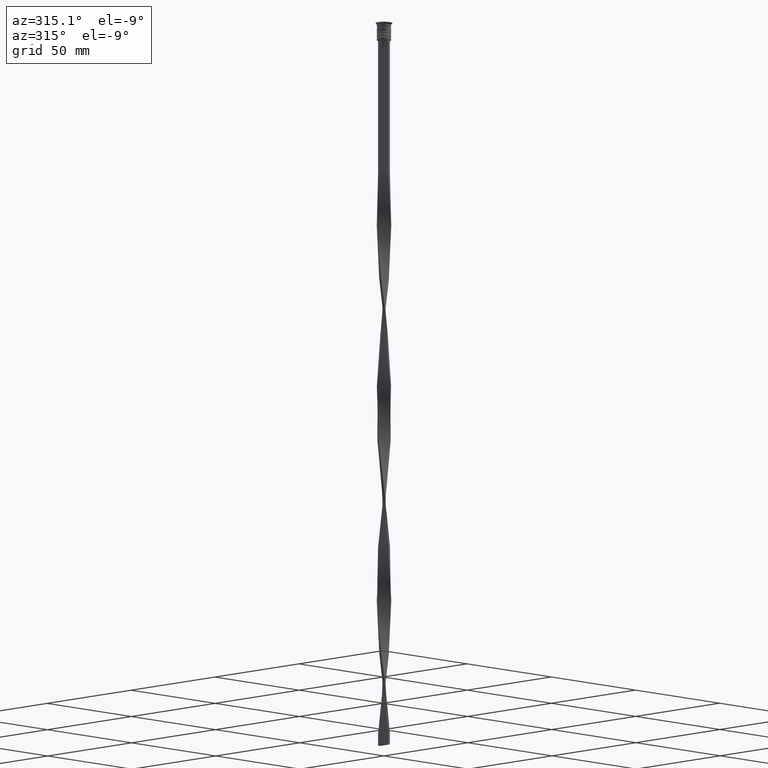
[diagram: clean part render]
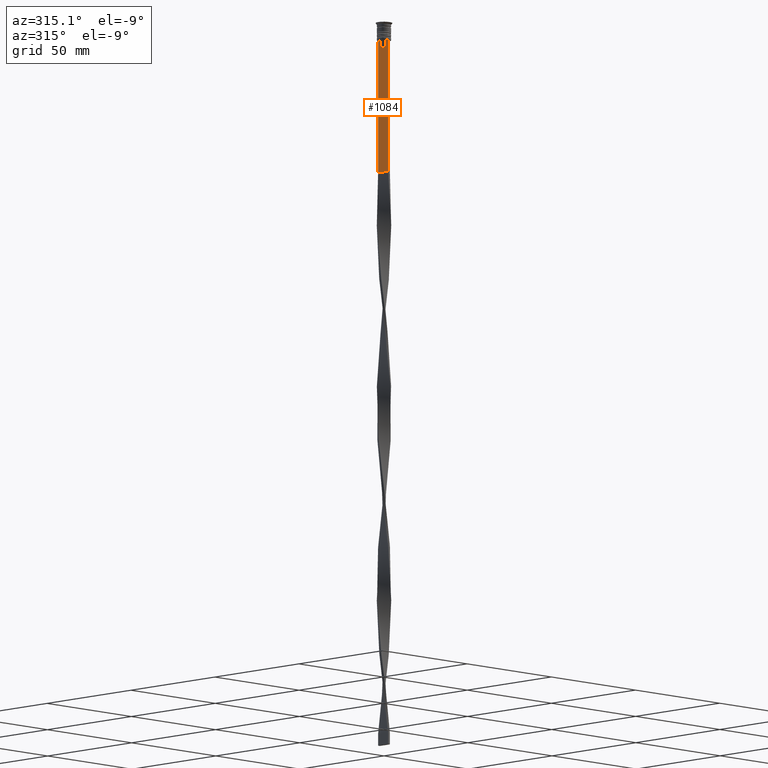
[diagram: same view with one face highlighted and labeled with its STEP entity id]
A machine part, auxiliary view. The second image highlights one B-rep face of the part: STEP entity #1084.
In plain terms, the highlighted planar face has unit normal (-1, 0, 0).
Its self-contained STEP definition (entity closure, byte-faithful):
#78 = ORIENTED_EDGE ( 'NONE', *, *, #3567, .F. ) ;
#145 = B_SPLINE_CURVE_WITH_KNOTS ( 'NONE', 3,
 ( #2719, #3930, #2432, #1201 ),
 .UNSPECIFIED., .F., .F.,
 ( 4, 4 ),
 ( 0.003278537493109840491, 0.004003794023484932504 ),
 .UNSPECIFIED. ) ;
#149 = VECTOR ( 'NONE', #580, 1000.000000000000000 ) ;
#166 = CARTESIAN_POINT ( 'NONE',  ( -0.5000000000000001110, -1.307669683062199217, -8.000000000000000000 ) ) ;
#170 = LINE ( 'NONE', #2299, #3718 ) ;
#203 = DIRECTION ( 'NONE',  ( 0.000000000000000000, -1.000000000000000000, 0.000000000000000000 ) ) ;
#237 = VERTEX_POINT ( 'NONE', #2107 ) ;
#265 = CARTESIAN_POINT ( 'NONE',  ( -0.5000000000000001110, 2.856571371417139904, -7.500000000000000000 ) ) ;
#289 = CARTESIAN_POINT ( 'NONE',  ( -0.5000000000000001110, -3.000000000000000000, -1.417237469701779329 ) ) ;
#336 = VECTOR ( 'NONE', #1388, 1000.000000000000000 ) ;
#410 = VECTOR ( 'NONE', #2152, 1000.000000000000000 ) ;
#445 = CARTESIAN_POINT ( 'NONE',  ( -0.5000000000000001110, -3.000000000000000000, -63.50000000000000000 ) ) ;
#467 = ORIENTED_EDGE ( 'NONE', *, *, #1078, .F. ) ;
#485 = CARTESIAN_POINT ( 'NONE',  ( -0.5000000000000001110, -3.000000000000000000, -7.500000000000000000 ) ) ;
#505 = DIRECTION ( 'NONE',  ( -1.000000000000000000, 0.000000000000000000, 0.000000000000000000 ) ) ;
#521 = ORIENTED_EDGE ( 'NONE', *, *, #3592, .F. ) ;
#524 = DIRECTION ( 'NONE',  ( 0.000000000000000000, -1.000000000000000000, 0.000000000000000000 ) ) ;
#580 = DIRECTION ( 'NONE',  ( 0.000000000000000000, 0.000000000000000000, -1.000000000000000000 ) ) ;
#597 = VECTOR ( 'NONE', #524, 1000.000000000000000 ) ;
#603 = VECTOR ( 'NONE', #2966, 1000.000000000000000 ) ;
#692 = CARTESIAN_POINT ( 'NONE',  ( -0.5000000000000001110, 3.000000000000000000, -1.417237469701779329 ) ) ;
#707 = LINE ( 'NONE', #485, #336 ) ;
#731 = LINE ( 'NONE', #3164, #3651 ) ;
#826 = DIRECTION ( 'NONE',  ( 0.000000000000000000, 1.000000000000000000, 0.000000000000000000 ) ) ;
#866 = EDGE_CURVE ( 'NONE', #3192, #1202, #707, .T. ) ;
#898 = LINE ( 'NONE', #3331, #410 ) ;
#913 = ORIENTED_EDGE ( 'NONE', *, *, #1589, .F. ) ;
#971 = ORIENTED_EDGE ( 'NONE', *, *, #3367, .F. ) ;
#993 = ORIENTED_EDGE ( 'NONE', *, *, #2205, .F. ) ;
#1025 = VERTEX_POINT ( 'NONE', #265 ) ;
#1078 = EDGE_CURVE ( 'NONE', #1025, #1140, #3555, .T. ) ;
#1084 = ADVANCED_FACE ( 'NONE', ( #1801 ), #3015, .T. ) ;
#1103 = VECTOR ( 'NONE', #3103, 1000.000000000000000 ) ;
#1140 = VERTEX_POINT ( 'NONE', #1506 ) ;
#1165 = DIRECTION ( 'NONE',  ( 0.000000000000000000, 0.000000000000000000, 1.000000000000000000 ) ) ;
#1201 = CARTESIAN_POINT ( 'NONE',  ( -0.5000000000000001110, 1.307669683062199217, -8.000000000000000000 ) ) ;
#1202 = VERTEX_POINT ( 'NONE', #3055 ) ;
#1379 = EDGE_CURVE ( 'NONE', #3851, #3633, #2220, .T. ) ;
#1388 = DIRECTION ( 'NONE',  ( 0.000000000000000000, -1.000000000000000000, 0.000000000000000000 ) ) ;
#1390 = DIRECTION ( 'NONE',  ( -0.000000000000000000, -0.000000000000000000, 1.000000000000000000 ) ) ;
#1443 = CARTESIAN_POINT ( 'NONE',  ( -0.5000000000000001110, -1.484307477388859153, -7.835011508197190722 ) ) ;
#1504 = VERTEX_POINT ( 'NONE', #445 ) ;
#1506 = CARTESIAN_POINT ( 'NONE',  ( -0.5000000000000001110, 1.833030277982335532, -7.500000000000000000 ) ) ;
#1543 = VERTEX_POINT ( 'NONE', #2263 ) ;
#1589 = EDGE_CURVE ( 'NONE', #2339, #3192, #731, .T. ) ;
#1637 = EDGE_CURVE ( 'NONE', #3154, #3051, #170, .T. ) ;
#1676 = CARTESIAN_POINT ( 'NONE',  ( -0.5000000000000001110, -1.833030277982335532, -7.500000000000000000 ) ) ;
#1698 = ORIENTED_EDGE ( 'NONE', *, *, #2672, .F. ) ;
#1702 = DIRECTION ( 'NONE',  ( 0.000000000000000000, -1.000000000000000000, 0.000000000000000000 ) ) ;
#1737 = EDGE_CURVE ( 'NONE', #1504, #3633, #2356, .T. ) ;
#1748 = CARTESIAN_POINT ( 'NONE',  ( -0.5000000000000001110, 1.399999999999997691, -10.49999999999999822 ) ) ;
#1801 = FACE_OUTER_BOUND ( 'NONE', #2724, .T. ) ;
#1947 = ORIENTED_EDGE ( 'NONE', *, *, #1379, .T. ) ;
#1997 = ORIENTED_EDGE ( 'NONE', *, *, #1737, .F. ) ;
#2017 = CARTESIAN_POINT ( 'NONE',  ( -0.5000000000000001110, -3.000000000000000000, -7.500000000000000000 ) ) ;
#2107 = CARTESIAN_POINT ( 'NONE',  ( -0.5000000000000001110, 1.307669683062199217, -8.000000000000000000 ) ) ;
#2152 = DIRECTION ( 'NONE',  ( 0.000000000000000000, 0.000000000000000000, -1.000000000000000000 ) ) ;
#2205 = EDGE_CURVE ( 'NONE', #237, #1543, #2392, .T. ) ;
#2220 = LINE ( 'NONE', #692, #1103 ) ;
#2263 = CARTESIAN_POINT ( 'NONE',  ( -0.5000000000000001110, 1.307669683062199217, -10.49999999999999822 ) ) ;
#2281 = CARTESIAN_POINT ( 'NONE',  ( -0.5000000000000001110, -1.307669683062199217, -10.49999999999999822 ) ) ;
#2299 = CARTESIAN_POINT ( 'NONE',  ( -0.5000000000000001110, -1.307669683062199217, 0.000000000000000000 ) ) ;
#2318 = CARTESIAN_POINT ( 'NONE',  ( -0.5000000000000001110, -2.856571371417139904, -7.500000000000000000 ) ) ;
#2339 = VERTEX_POINT ( 'NONE', #3111 ) ;
#2356 = LINE ( 'NONE', #2683, #3399 ) ;
#2392 = LINE ( 'NONE', #3048, #149 ) ;
#2432 = CARTESIAN_POINT ( 'NONE',  ( -0.5000000000000001110, 1.484355510416485391, -7.834966642958598015 ) ) ;
#2617 = LINE ( 'NONE', #2017, #3473 ) ;
#2672 = EDGE_CURVE ( 'NONE', #1543, #3154, #3624, .T. ) ;
#2683 = CARTESIAN_POINT ( 'NONE',  ( -0.5000000000000001110, -3.000000000000000000, -63.50000000000000000 ) ) ;
#2719 = CARTESIAN_POINT ( 'NONE',  ( -0.5000000000000001110, 1.833030277982335532, -7.500000000000000000 ) ) ;
#2724 = EDGE_LOOP ( 'NONE', ( #3950, #467, #78, #1947, #1997, #971, #3417, #913, #521, #3565, #1698, #993 ) ) ;
#2755 = CARTESIAN_POINT ( 'NONE',  ( -0.5000000000000001110, 3.000000000000000000, -7.500000000000000000 ) ) ;
#2966 = DIRECTION ( 'NONE',  ( 0.000000000000000000, -1.000000000000000000, 0.000000000000000000 ) ) ;
#3015 = PLANE ( 'NONE',  #3522 ) ;
#3048 = CARTESIAN_POINT ( 'NONE',  ( -0.5000000000000001110, 1.307669683062199217, 0.000000000000000000 ) ) ;
#3051 = VERTEX_POINT ( 'NONE', #3163 ) ;
#3055 = CARTESIAN_POINT ( 'NONE',  ( -0.5000000000000001110, -3.000000000000000000, -7.500000000000000000 ) ) ;
#3103 = DIRECTION ( 'NONE',  ( 0.000000000000000000, 0.000000000000000000, -1.000000000000000000 ) ) ;
#3109 = B_SPLINE_CURVE_WITH_KNOTS ( 'NONE', 3,
 ( #166, #1443, #3253, #1676 ),
 .UNSPECIFIED., .F., .F.,
 ( 4, 4 ),
 ( 0.007225659348748070081, 0.007950554640278040958 ),
 .UNSPECIFIED. ) ;
#3111 = CARTESIAN_POINT ( 'NONE',  ( -0.5000000000000001110, -1.833030277982335532, -7.500000000000000000 ) ) ;
#3154 = VERTEX_POINT ( 'NONE', #2281 ) ;
#3163 = CARTESIAN_POINT ( 'NONE',  ( -0.5000000000000001110, -1.307669683062199217, -8.000000000000000000 ) ) ;
#3164 = CARTESIAN_POINT ( 'NONE',  ( -0.5000000000000001110, -3.000000000000000000, -7.500000000000000000 ) ) ;
#3192 = VERTEX_POINT ( 'NONE', #2318 ) ;
#3253 = CARTESIAN_POINT ( 'NONE',  ( -0.5000000000000001110, -1.659011726860414093, -7.667884880598472286 ) ) ;
#3256 = CARTESIAN_POINT ( 'NONE',  ( -0.5000000000000001110, -3.000000000000000000, -7.500000000000000000 ) ) ;
#3331 = CARTESIAN_POINT ( 'NONE',  ( -0.5000000000000001110, -3.000000000000000000, -1.417237469701779329 ) ) ;
#3367 = EDGE_CURVE ( 'NONE', #1202, #1504, #898, .T. ) ;
#3399 = VECTOR ( 'NONE', #826, 1000.000000000000000 ) ;
#3417 = ORIENTED_EDGE ( 'NONE', *, *, #866, .F. ) ;
#3473 = VECTOR ( 'NONE', #203, 1000.000000000000000 ) ;
#3522 = AXIS2_PLACEMENT_3D ( 'NONE', #289, #505, #1165 ) ;
#3552 = CARTESIAN_POINT ( 'NONE',  ( -0.5000000000000001110, 3.000000000000000000, -63.50000000000000000 ) ) ;
#3555 = LINE ( 'NONE', #3256, #597 ) ;
#3565 = ORIENTED_EDGE ( 'NONE', *, *, #1637, .F. ) ;
#3567 = EDGE_CURVE ( 'NONE', #3851, #1025, #2617, .T. ) ;
#3592 = EDGE_CURVE ( 'NONE', #3051, #2339, #3109, .T. ) ;
#3624 = LINE ( 'NONE', #1748, #603 ) ;
#3633 = VERTEX_POINT ( 'NONE', #3552 ) ;
#3651 = VECTOR ( 'NONE', #1702, 1000.000000000000000 ) ;
#3718 = VECTOR ( 'NONE', #1390, 1000.000000000000000 ) ;
#3851 = VERTEX_POINT ( 'NONE', #2755 ) ;
#3882 = EDGE_CURVE ( 'NONE', #1140, #237, #145, .T. ) ;
#3930 = CARTESIAN_POINT ( 'NONE',  ( -0.5000000000000001110, 1.659046061654642523, -7.667851756010361619 ) ) ;
#3950 = ORIENTED_EDGE ( 'NONE', *, *, #3882, .F. ) ;